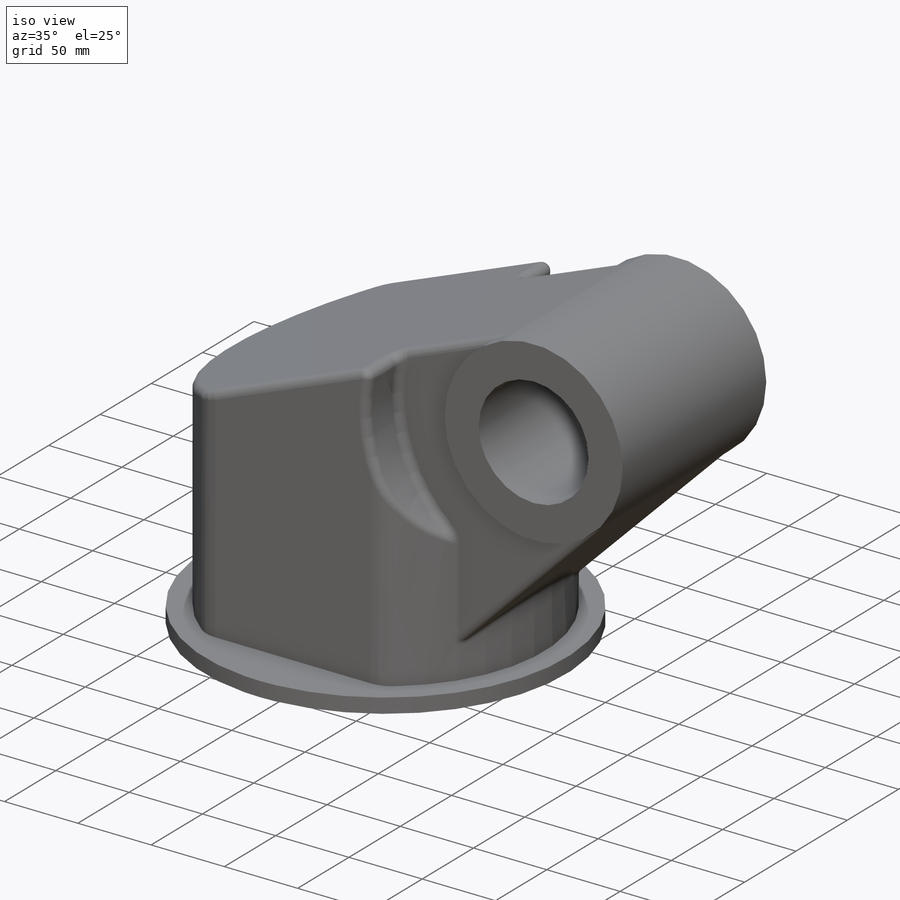
[diagram: iso view]
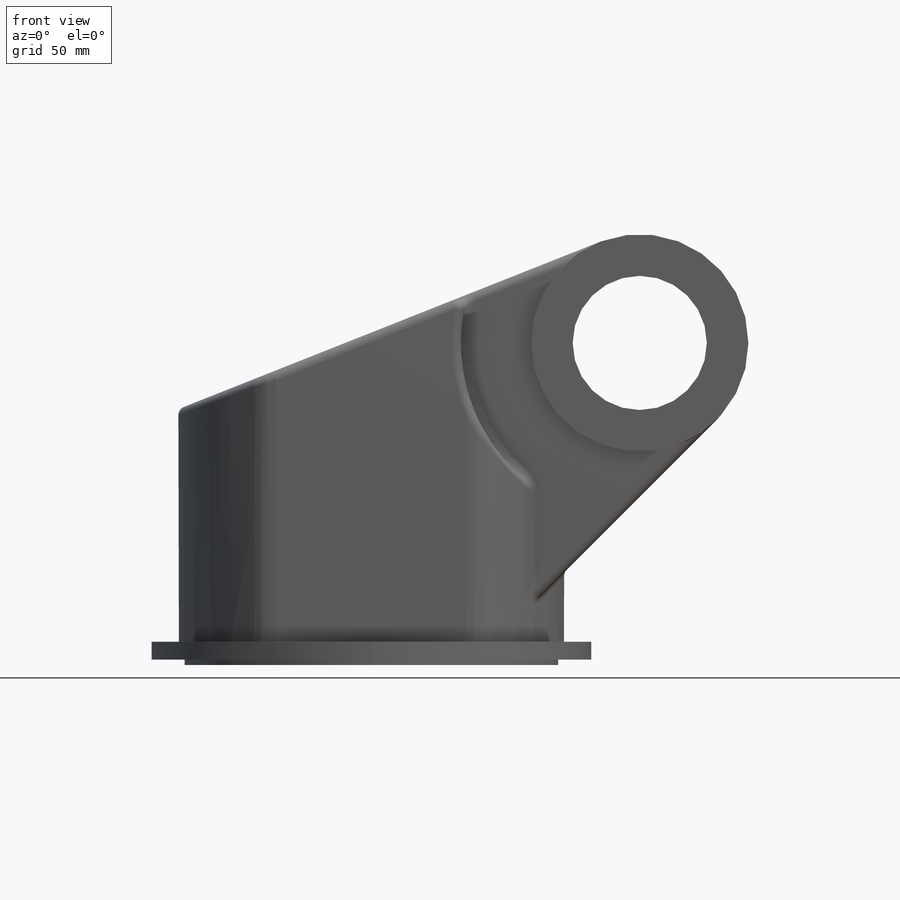
[diagram: front view]
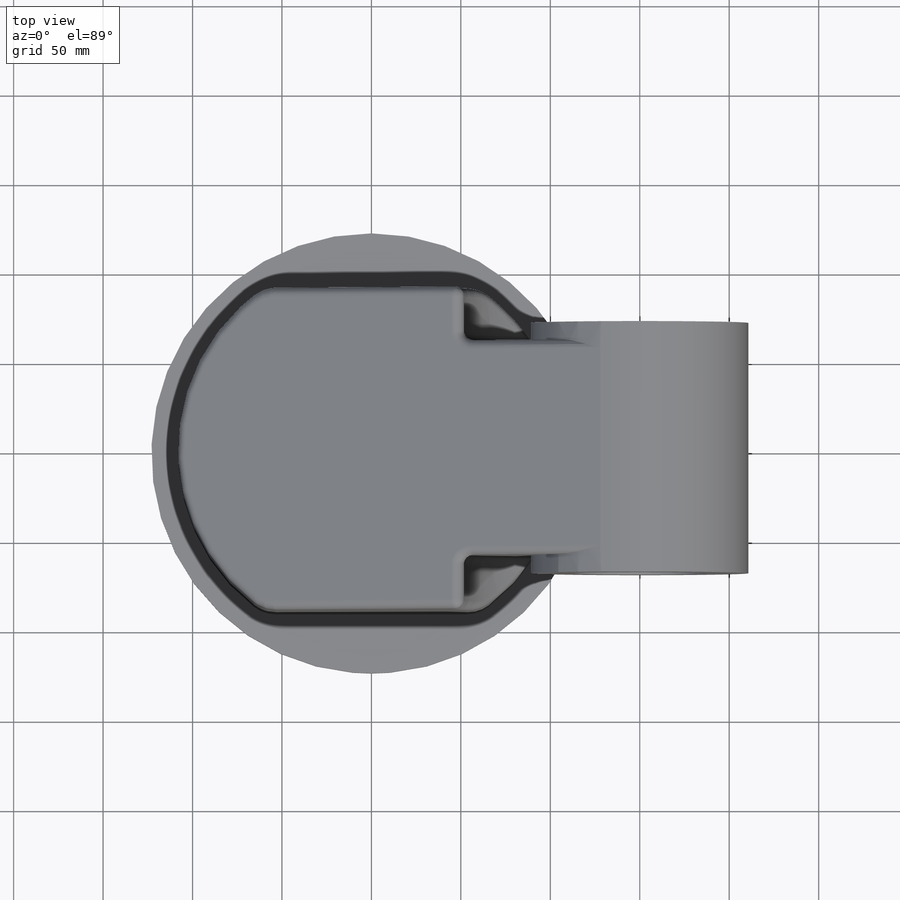
[diagram: top view]
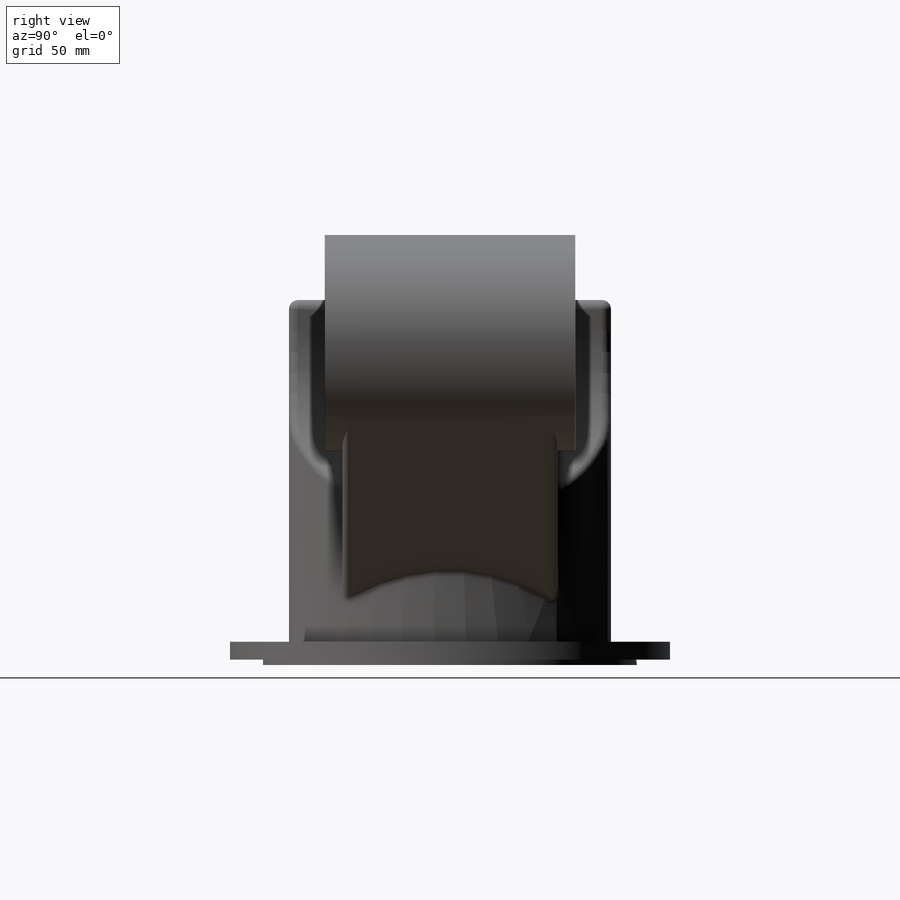
[diagram: right view]
SOLIDWORKS PART (.sldprt)
format: sldprt  version: not decoded by parser v0  size: 296,960 bytes
history: native  units: mm
features: sketch x8, extrude x5, cut_extrude x3, fillet x2, material x1, mirror x1 (+13 scaffold rows collapsed; 1 parser-record rows omitted)
feature tree (34):
  scaffold x13  (default folders/planes/origin — collapsed)
  material  "Material <não especificado>"
  parser-record x1  (decoder bookkeeping rows leaked as tree rows — omitted from the tree; the rows remain in map.json)
  sketch  "Sketch1"  dims[c1.D1=216.0mm c1.D2=246.0mm c1.Cut_Length1=220.0mm c1.Cut_Length2=220.0mm c2.D2=183.0mm c2.D3=160.0mm]
  extrude  "Base"  Depth=10mm Stock_Size=10mm
  sketch  "Sketch2"  dims[c1.D2=108.0mm c1.D3=15.0mm c1.D4=108.0mm c2.D2=108.0mm c2.D1=180.0mm c2.D4=85.0mm c3.D2=15.0mm]
  extrude  "Boss-Extrude1"  Depth=196.649mm
  sketch  "Sketch6"  dims[D1=209.0mm]
  extrude  "Boss-Extrude3"  Depth=3mm
  sketch  "Sketch3"  dims[c1.D1=216.0mm c2.D1=66.0deg c2.D2=216.0mm c3.D2=22.226deg c3.D3=60.0mm c3.D4=8.0mm c3.D1=246.0mm c4.D1=113.835deg c5.D1=90.0mm c5.D2=130.0mm]
  cut_extrude  "Cut-Extrude1"  [1 undecoded]
  sketch  "Sketch5"  dims[c1.D3=110.0mm c1.D5=80.0mm c1.D1=178.0mm c1.D2=150.0mm c1.D4=216.0mm c2.D4=45.0deg c2.D6=60.0mm c2.D1=180.0mm]
  extrude  "Boss-Extrude2"  Depth=120mm
  sketch  "Sketch9"  dims[D1=200.0mm]
  cut_extrude  "Cut-Extrude2"  [1 undecoded]
  sketch  "Sketch7"
  extrude  "Boss-Extrude4"  Depth=70mm
  mirror  "Mirror1"
  fillet  "Fillet1"  Radius=20mm
  fillet  "Fillet2"  Radius=5mm
  sketch  "Sketch10"  dims[D1=75.0mm]
  cut_extrude  "Cut-Extrude3"  [1 undecoded]
decode coverage: 14 of 19 modeling features carry decoded parameters
note: 3 parameter values undecoded
summary: no parameter record found for 3 features
note: suppression state not decoded; provenance and decode notes live in map.json
